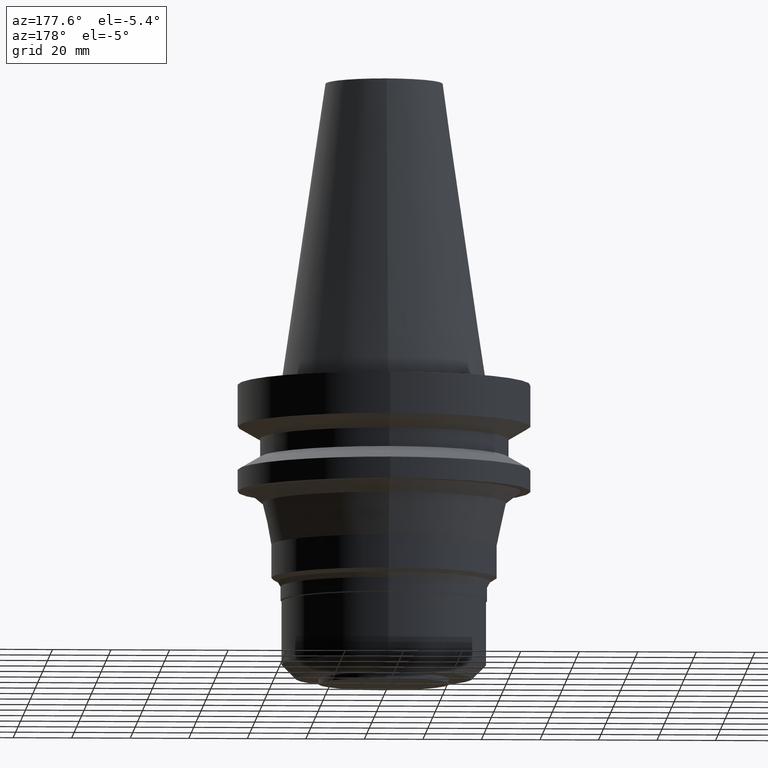
[diagram: clean part render]
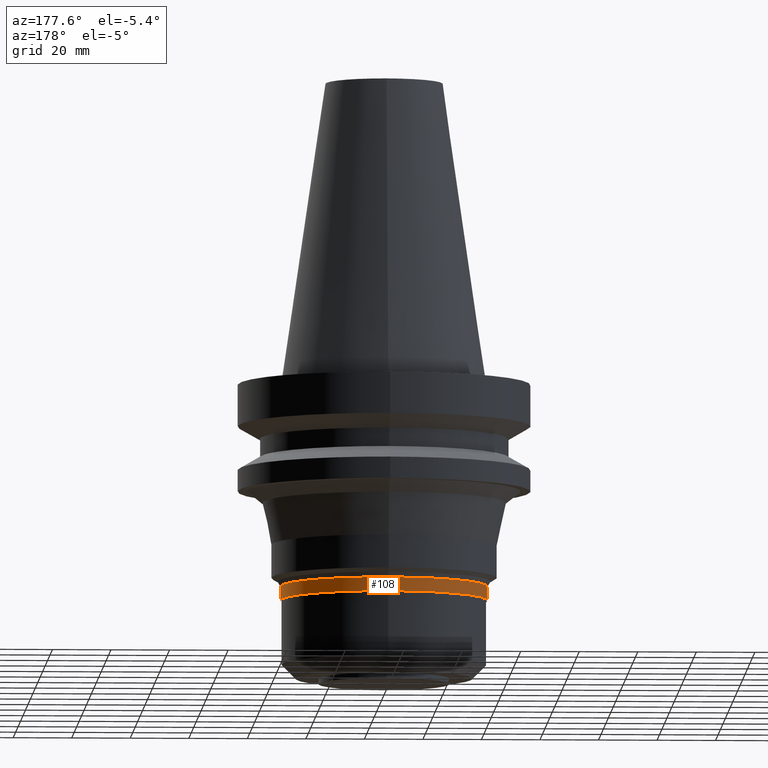
[diagram: same view with one face highlighted and labeled with its STEP entity id]
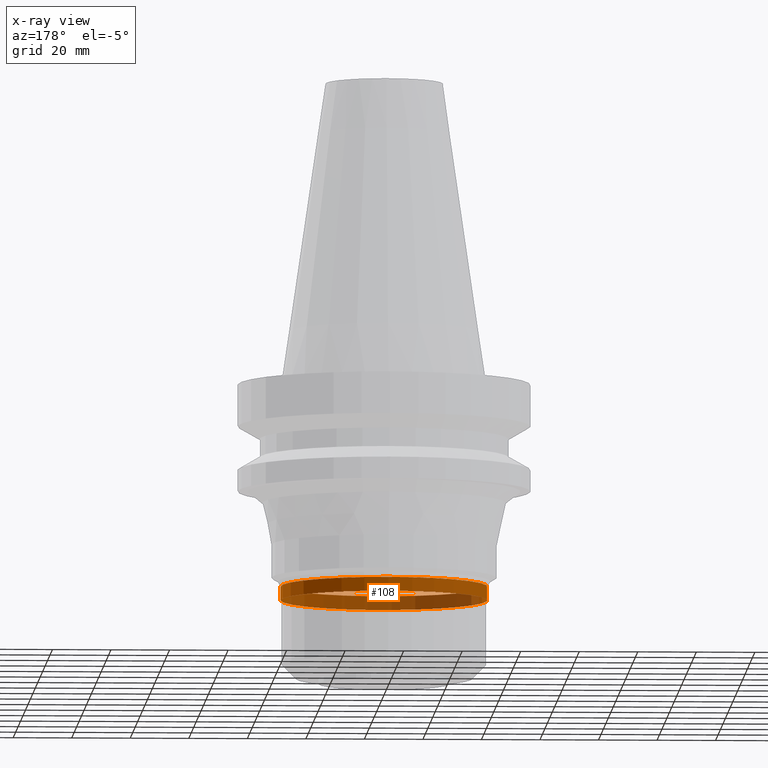
[diagram: x-ray of the same camera — body ghosted, the highlighted face saturated]
A machine part, auxiliary view. The second image highlights one B-rep face of the part: STEP entity #108.
The next image is the same camera in x-ray: the body ghosted, the highlighted face saturated — about 46% of this face is hidden behind the body in this view.
In plain terms, the highlighted cylindrical surface (bore or boss wall) has radius 35.35 mm, axis along (0, 0, -1).
Its self-contained STEP definition (entity closure, byte-faithful):
#108=ADVANCED_FACE('Unnamed[1]',(#258,#259),#260,.T.);
#157=EDGE_CURVE('Unnamed[1]',#334,#334,#335,.T.);
#161=EDGE_CURVE('Unnamed[1]',#340,#340,#341,.T.);
#258=FACE_BOUND('',#454,.T.);
#259=FACE_BOUND('',#455,.T.);
#260=CYLINDRICAL_SURFACE('',#456,35.3499999999999);
#334=VERTEX_POINT('',#549);
#335=CIRCLE('',#550,35.3499999999999);
#340=VERTEX_POINT('',#557);
#341=CIRCLE('',#558,35.3499999999999);
#454=EDGE_LOOP('',(#664));
#455=EDGE_LOOP('',(#665));
#456=AXIS2_PLACEMENT_3D('',#666,#667,#668);
#549=CARTESIAN_POINT('',(4.32194724702722E-015,35.3499999999999,-70.5827549630854));
#550=AXIS2_PLACEMENT_3D('',#747,#748,#749);
#557=CARTESIAN_POINT('',(4.61079519878978E-015,35.3499999999999,-75.3));
#558=AXIS2_PLACEMENT_3D('',#753,#754,#755);
#664=ORIENTED_EDGE('',*,*,#161,.F.);
#665=ORIENTED_EDGE('',*,*,#157,.T.);
#666=CARTESIAN_POINT('',(4.4663712229085E-015,8.932742445817E-015,-72.9413774815427));
#667=DIRECTION('',(6.12323399573677E-017,1.22464679914694E-016,-1.0));
#668=DIRECTION('',(-1.23259516440804E-032,1.0,1.22464679914694E-016));
#747=CARTESIAN_POINT('',(4.32194724702722E-015,8.64389449405445E-015,-70.5827549630854));
#748=DIRECTION('',(6.12323399573677E-017,1.22464679914694E-016,-1.0));
#749=DIRECTION('',(-1.23259516440804E-032,1.0,1.22464679914694E-016));
#753=CARTESIAN_POINT('',(4.61079519878978E-015,9.22159039757956E-015,-75.3));
#754=DIRECTION('',(6.12323399573677E-017,1.22464679914694E-016,-1.0));
#755=DIRECTION('',(-1.23259516440804E-032,1.0,1.22464679914694E-016));